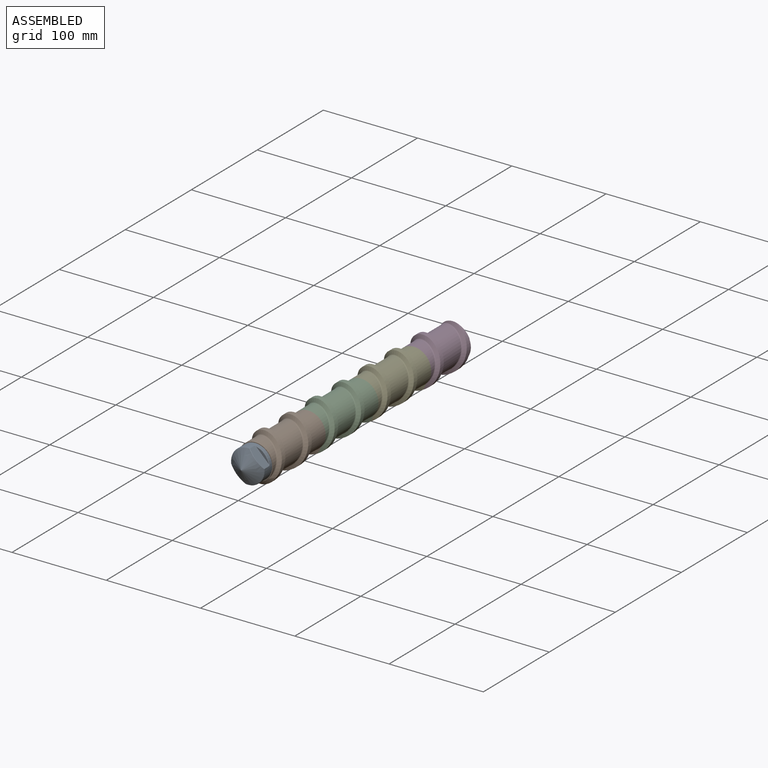
[diagram: assembled view]
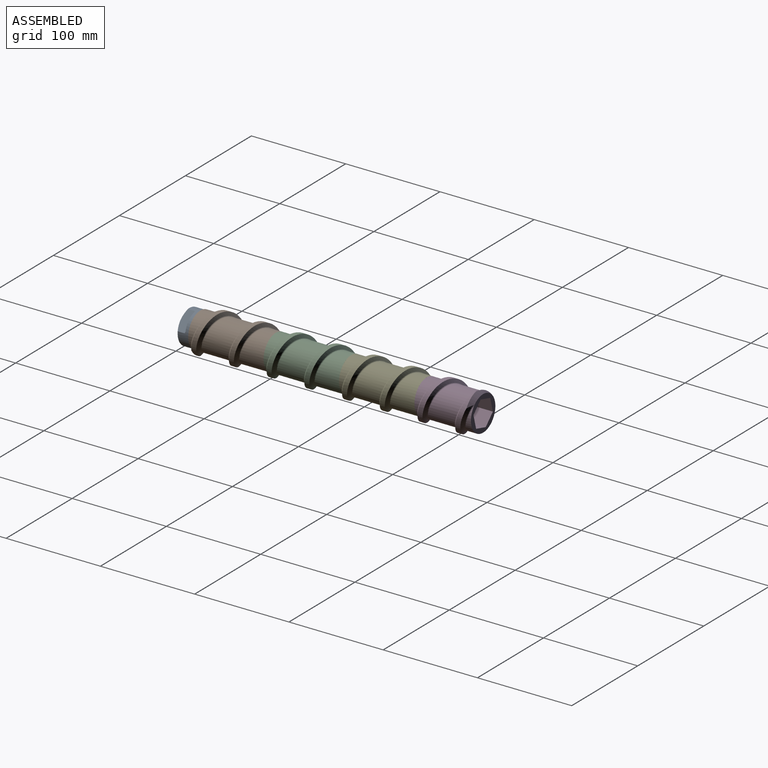
[diagram: assembled view, second angle]
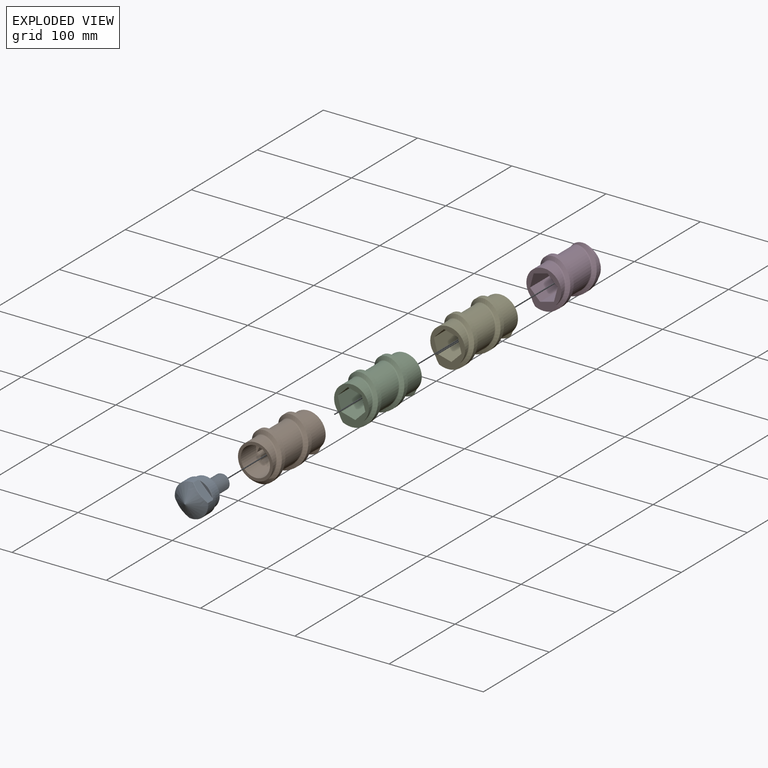
[diagram: exploded view]
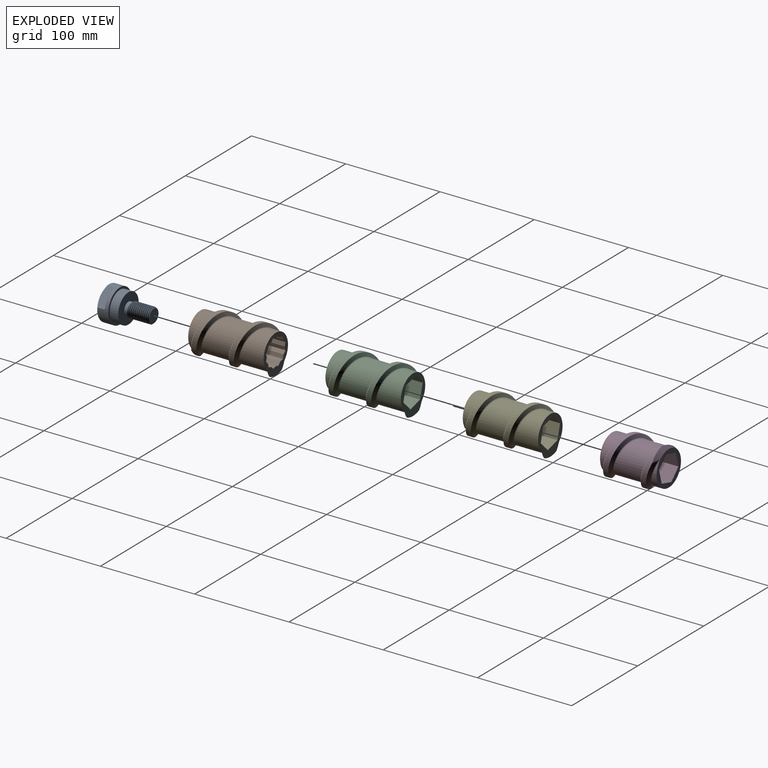
[diagram: exploded view, second angle]
ASSEMBLY  parts=5 mates=4
PART A: 39 faces, bbox 36.3x59.7x36.3 mm
  f0: plane 16.74x15.97mm, normal (0,-1,0), area 50.3mm2, adj f4,f5,f34,f36,f37
  f1: cylinder r=17.8mm len=35.6mm, axis (0,-1,0), area 900.7mm2, adj f8,f13,f15,f16,f17,f18,f22,f23
  f2: cone r=0mm half-angle=60deg, axis (0,1,0), area 1003.2mm2, adj f19,f22,f23,f24
  f3: plane 14.13x14.13mm, normal (0,1,0), area 151.9mm2, adj f33,f35,f37,f38
  f4: cylinder r=8mm len=22mm, axis (0,-1,0), area 12.4mm2, adj f0,f33,f34,f36,f38
  f5: cylinder r=6.5mm len=13mm, axis (0,-1,0), area 163.4mm2, adj f0,f6
  f6: plane 31x31mm, normal (0,1,0), area 622mm2, adj f5,f7
  f7: cylinder r=15.5mm len=31mm, axis (0,-1,0), area 876.5mm2, adj f6,f8
  f8: plane 35.6x35.6mm, normal (0,1,0), area 240.6mm2, adj f1,f7
  f9: plane 21.93x9.42mm, normal (0,0,-1), area 180.8mm2, adj f24,f27,f28,f29
  f10: plane 18.87x2.8mm, normal (0,-1,0), area 35.8mm2, adj f29,f32
  f11: plane 21.93x9.42mm, normal (0,0,1), area 180.8mm2, adj f14,f17,f18,f19
  f12: plane 18.87x2.8mm, normal (0,-1,0), area 35.8mm2, adj f13,f14
  f13: cone r=17.8mm half-angle=45deg, axis (0,1,0), area 14.3mm2, adj f1,f12,f15,f16
  f14: plane 21.64x0.5mm, normal (0,-0.71,0.71), area 14.3mm2, adj f11,f12,f15,f16
  f15: bspline ~1.73x1.08mm, area 0.7mm2, adj f1,f13,f14,f17
  f16: bspline ~1.7x1.03mm, area 0.7mm2, adj f1,f13,f14,f18
  f17: plane 6.93x0.31mm, normal (0.33,0,0.94), area 2.3mm2, adj f1,f11,f15,f20
  f18: plane 6.93x0.31mm, normal (-0.33,0,0.94), area 2.3mm2, adj f1,f11,f16,f21
  f19: bspline ~21.95x2.63mm, area 11.6mm2, adj f2,f11,f20,f21
  f20: plane 0.44x0.31mm, normal (0.29,-0.48,0.83), area 0.1mm2, adj f17,f19,f22
  f21: plane 0.43x0.31mm, normal (-0.29,-0.48,0.83), area 0.1mm2, adj f18,f19,f23
  f22: cone r=17.55mm half-angle=30deg, axis (0,1,0), area 15.8mm2, adj f1,f2,f20,f25
  f23: cone r=17.55mm half-angle=30deg, axis (0,1,0), area 15.8mm2, adj f1,f2,f21,f26
  f24: bspline ~21.95x2.63mm, area 11.6mm2, adj f2,f9,f25,f26
  f25: plane 0.43x0.31mm, normal (0.29,-0.48,-0.83), area 0.1mm2, adj f22,f24,f27
  f26: plane 0.43x0.31mm, normal (-0.29,-0.48,-0.83), area 0.1mm2, adj f23,f24,f28
  f27: plane 6.93x0.31mm, normal (0.33,0,-0.94), area 2.3mm2, adj f1,f9,f25,f30
  f28: plane 6.93x0.31mm, normal (-0.33,0,-0.94), area 2.3mm2, adj f1,f9,f26,f31
  f29: plane 21.64x0.5mm, normal (0,-0.71,-0.71), area 14.3mm2, adj f9,f10,f30,f31
  f30: bspline ~1.7x1.03mm, area 0.7mm2, adj f1,f27,f29,f32
  f31: bspline ~1.73x1.08mm, area 0.7mm2, adj f1,f28,f29,f32
  f32: cone r=17.8mm half-angle=45deg, axis (0,1,0), area 14.3mm2, adj f1,f10,f30,f31
  f33: cone r=8mm half-angle=45deg, axis (0,-1,0), area 27.2mm2, adj f3,f4,f35,f36,f38
  f34: plane 1.39x0.98mm, normal (0,0,1), area 0.8mm2, adj f0,f4,f37,f38
  f35: plane 1.39x1.02mm, normal (0,0,1), area 0.3mm2, adj f3,f33,f36,f37
  f36: bspline ~24.04x18.48mm, area 735.1mm2, adj f0,f4,f33,f35,f37
  f37: bspline ~23.83x15.64mm, area 290.1mm2, adj f0,f3,f34,f35,f36,f38
  f38: bspline ~23.71x18.48mm, area 724mm2, adj f3,f4,f33,f34,f37
PART B: 35 faces, bbox 45.4x86.1x45.4 mm
  f0: plane 57.11x4.49mm, normal (0,0,1), area 227.4mm2, adj f1,f23,f29,f33
  f1: plane 57.11x3.94mm, normal (0.5,0,0.87), area 227.4mm2, adj f0,f2,f29,f33
  f2: plane 57.11x3.94mm, normal (-0.5,0,0.87), area 227.4mm2, adj f1,f3,f29,f33
  f3: plane 57.11x4.49mm, normal (0,0,1), area 227.4mm2, adj f2,f4,f29,f33
  f4: plane 57.11x3.94mm, normal (-0.87,0,0.5), area 227.4mm2, adj f3,f5,f29,f33
  f5: plane 57.11x3.94mm, normal (-0.5,0,0.87), area 227.4mm2, adj f4,f6,f29,f33
  f6: plane 57.11x4.49mm, normal (-1,0,0), area 227.4mm2, adj f5,f7,f29,f33
  f7: plane 56.82x3.65mm, normal (-0.87,0,0.5), area 227.4mm2, adj f6,f8,f29,f33
  f8: plane 57.11x3.94mm, normal (-0.87,0,-0.5), area 227.4mm2, adj f7,f9,f29,f33
  f9: plane 57.11x4.49mm, normal (-1,0,0), area 227.4mm2, adj f8,f10,f29,f33
  f10: plane 57.11x3.94mm, normal (-0.5,0,-0.87), area 227.4mm2, adj f9,f11,f29,f33
  f11: plane 57.11x3.94mm, normal (-0.87,0,-0.5), area 227.4mm2, adj f10,f12,f29,f33
  f12: plane 57.11x4.49mm, normal (0,0,-1), area 227.4mm2, adj f11,f13,f29,f33
  f13: plane 57.11x3.94mm, normal (-0.5,0,-0.87), area 227.4mm2, adj f12,f14,f29,f33
  f14: plane 57.11x3.94mm, normal (0.5,0,-0.87), area 227.4mm2, adj f13,f15,f29,f33
  f15: plane 57.11x4.49mm, normal (0,0,-1), area 227.4mm2, adj f14,f16,f29,f33
  f16: plane 57.11x3.94mm, normal (0.87,0,-0.5), area 227.4mm2, adj f15,f17,f29,f33
  f17: plane 57.11x3.94mm, normal (0.5,0,-0.87), area 227.4mm2, adj f16,f18,f29,f33
  f18: plane 57.11x4.49mm, normal (1,0,0), area 227.4mm2, adj f17,f19,f29,f33
  f19: plane 57.11x3.94mm, normal (0.87,0,-0.5), area 227.4mm2, adj f18,f20,f29,f33
  f20: plane 57.11x3.94mm, normal (0.87,0,0.5), area 227.4mm2, adj f19,f21,f29,f33
  f21: plane 57.11x4.49mm, normal (1,0,0), area 227.4mm2, adj f20,f22,f29,f33
  f22: plane 57.11x3.94mm, normal (0.5,0,0.87), area 227.4mm2, adj f21,f23,f29,f33
  f23: plane 57.11x3.94mm, normal (0.87,0,0.5), area 227.4mm2, adj f0,f22,f29,f33
  f24: plane 37x37mm, normal (0,-1,0), area 320.4mm2, adj f28,f32,f34
  f25: bspline ~82.31x45mm, area 1054.5mm2, adj f26,f29,f31,f34
  f26: cylinder r=22.5mm len=76mm, axis (0,-1,0), area 1414.5mm2, adj f25,f27,f29,f34
  f27: bspline ~85.64x45mm, area 1054.3mm2, adj f26,f29,f30,f34
  f28: cylinder r=18.5mm len=80mm, axis (0,1,0), area 6705.6mm2, adj f24,f29,f30,f31
  f29: plane 39.81x39.7mm, normal (0,1,0), area 529.2mm2, adj f0,f1,f2,f3,f4,f5,f6,f7
  f30: bspline ~82.16x38.04mm, area 263.3mm2, adj f27,f28,f29,f34
  f31: bspline ~81.89x38.04mm, area 263.4mm2, adj f25,f28,f29,f34
  f32: cylinder r=15.5mm len=31mm, axis (0,-1,0), area 2240mm2, adj f24,f33
  f33: cone r=13.63mm half-angle=45deg, axis (0,-1,0), area 143.9mm2, adj f0,f1,f2,f3,f4,f5,f6,f7
  f34: cone r=22.5mm half-angle=45deg, axis (0,1,0), area 138.2mm2, adj f24,f25,f26,f27,f30,f31
PART C: 14 faces, bbox 45.3x86.8x45.3 mm
  f0: plane 39.81x39.7mm, normal (0,-1,0), area 572.3mm2, adj f1,f2,f3,f4,f6,f7,f8,f9
  f1: bspline ~85.64x45mm, area 1085.5mm2, adj f0,f2,f5,f7
  f2: cylinder r=22.5mm len=80mm, axis (0,-1,0), area 1504.3mm2, adj f0,f1,f3,f5
  f3: bspline ~85.64x45mm, area 1085.4mm2, adj f0,f2,f5,f6
  f4: cylinder r=18.5mm len=80mm, axis (0,1,0), area 6705.6mm2, adj f0,f5,f6,f7
  f5: plane 39.81x39.7mm, normal (0,1,0), area 572.3mm2, adj f1,f2,f3,f4,f6,f7,f8,f9
  f6: bspline ~82.16x38.04mm, area 264.2mm2, adj f0,f3,f4,f5
  f7: bspline ~82.46x38.04mm, area 264.3mm2, adj f0,f1,f4,f5
  f8: plane 80x15.2mm, normal (1,0,0), area 1216mm2, adj f0,f5,f9,f13
  f9: plane 80x13.16mm, normal (0.5,0,0.87), area 1216mm2, adj f0,f5,f8,f10
  f10: plane 80x13.16mm, normal (-0.5,0,0.87), area 1216mm2, adj f0,f5,f9,f11
  f11: plane 80x15.2mm, normal (-1,0,0), area 1216mm2, adj f0,f5,f10,f12
  f12: plane 80x13.16mm, normal (-0.5,0,-0.87), area 1216mm2, adj f0,f5,f11,f13
  f13: plane 80x13.16mm, normal (0.5,0,-0.87), area 1216mm2, adj f0,f5,f8,f12
PART D: 15 faces, bbox 45.3x65.9x45.3 mm
  f0: plane 37x37mm, normal (0,-1,0), area 475mm2, adj f4,f8,f9,f10,f11,f12,f13,f14
  f1: bspline ~62.31x45mm, area 783mm2, adj f2,f5,f7,f14
  f2: cylinder r=22.5mm len=56mm, axis (0,-1,0), area 1050.3mm2, adj f1,f3,f5,f14
  f3: bspline ~65.64x45mm, area 782.8mm2, adj f2,f5,f6,f14
  f4: cylinder r=18.5mm len=60mm, axis (0,1,0), area 5028.8mm2, adj f0,f5,f6,f7
  f5: plane 39.81x39.7mm, normal (0,1,0), area 572.3mm2, adj f1,f2,f3,f4,f6,f7,f8,f9
  f6: bspline ~62.19x38.04mm, area 197.3mm2, adj f3,f4,f5,f14
  f7: bspline ~62.03x38.04mm, area 197.4mm2, adj f1,f4,f5,f14
  f8: plane 60x15.2mm, normal (1,0,0), area 912mm2, adj f0,f5,f9,f13
  f9: plane 60x13.16mm, normal (0.5,0,0.87), area 912mm2, adj f0,f5,f8,f10
  f10: plane 60x13.16mm, normal (-0.5,0,0.87), area 912mm2, adj f0,f5,f9,f11
  f11: plane 60x15.2mm, normal (-1,0,0), area 912mm2, adj f0,f5,f10,f12
  f12: plane 60x13.16mm, normal (-0.5,0,-0.87), area 912mm2, adj f0,f5,f11,f13
  f13: plane 60x13.16mm, normal (0.5,0,-0.87), area 912mm2, adj f0,f5,f8,f12
  f14: cone r=22.5mm half-angle=45deg, axis (0,1,0), area 138.2mm2, adj f0,f1,f2,f3,f6,f7
PART E: same geometry as C
PLACE A rot(axis=(0,1,0),45deg) t=(0,26,0)mm
PLACE B rot(axis=(0,1,0),45deg) t=(0,66,0)mm
PLACE C rot(axis=(0,1,0),45deg) t=(0,146,0)mm
PLACE D rot(axis=(0.38,0,-0.92),180deg) t=(0,296,0)mm
PLACE E rot(axis=(0,1,0),45deg) t=(0,226,0)mm
MATE fastened B.f32 <-> A.f1  axis (0,-1,0) through (0,26,0)mm
MATE fastened C.f2 <-> B.f34  axis (0,-1,0) through (0,106,0)mm
MATE fastened C.f2 <-> E.f2  axis (0,1,0) through (0,186,0)mm
MATE fastened D.f14 <-> E.f2  axis (0,-1,0) through (0,266,0)mm
